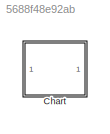
MODEL slx_5688f48e92ab
KIND model
CONFIG AbsTol = auto
CONFIG EnableMultiTasking = on
CONFIG FixedStep = 0.1
CONFIG MaxStep = auto
CONFIG MinStep = auto
CONFIG RelTol = 1e-3
CONFIG SampleTimeConstraint = Unconstrained
CONFIG Solver = FixedStepDiscrete
CONFIG SolverName = FixedStepDiscrete
CONFIG StartTime = 0.0
CONFIG StopTime = 0.1
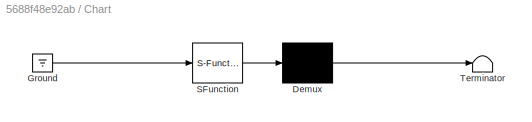
BLOCK [SubSystem] Chart
  ErrorFcn = Stateflow.Translate.translate
  PermitHierarchicalResolution = ExplicitOnly
  Ports = []
  RequestExecContextInheritance = off
  SFBlockType = Chart
  TreatAsAtomicUnit = on
BLOCK [Demux] Chart/ Demux 
  Outputs = 1
  Ports = [1, 1]
BLOCK [Ground] Chart/ Ground 
BLOCK [S-Function] Chart/ SFunction 
  EnableBusSupport = on
  FunctionName = sf_sfun
  PortCounts = [1 1]
  Ports = [1, 1]
  SFcnIsStateOwnerBlock = off
  SFunctionDeploymentMode = off
  Tag = Stateflow S-Function GraphicalFunction4_2018a 3
BLOCK [Terminator] Chart/ Terminator 
CHART Chart states=5 transitions=20
  STATE_LABEL 'flag=acked_all'
  STATE_LABEL '{flag=0;}'
  STATE_LABEL '{i=1;}'
  STATE_LABEL '[i>5]'
  STATE_LABEL '{flag=1;}'
  STATE_LABEL '{f("ack")}'
  STATE_LABEL '[i<=5]'
  STATE_LABEL '{i=i+1;}'
  STATE_LABEL 'flag=empty'
  STATE_LABEL '{flag=0;}'
  STATE_LABEL '{i=1;}'
  STATE_LABEL '[i>5]'
  STATE_LABEL '{flag=1;}'
  STATE_LABEL '[i<=5&&a(i)==0]'
  STATE_LABEL '{i=i+1;}'
  STATE_LABEL 'f(s)'
  STATE_LABEL 'SCRIPT:\nfunction f(s)\n  fprintf(s+"\\n");\n'
  STATE_LABEL 'B\nen: f("en_B")\n'
  STATE_LABEL 'A\nen: f("en_A")'
